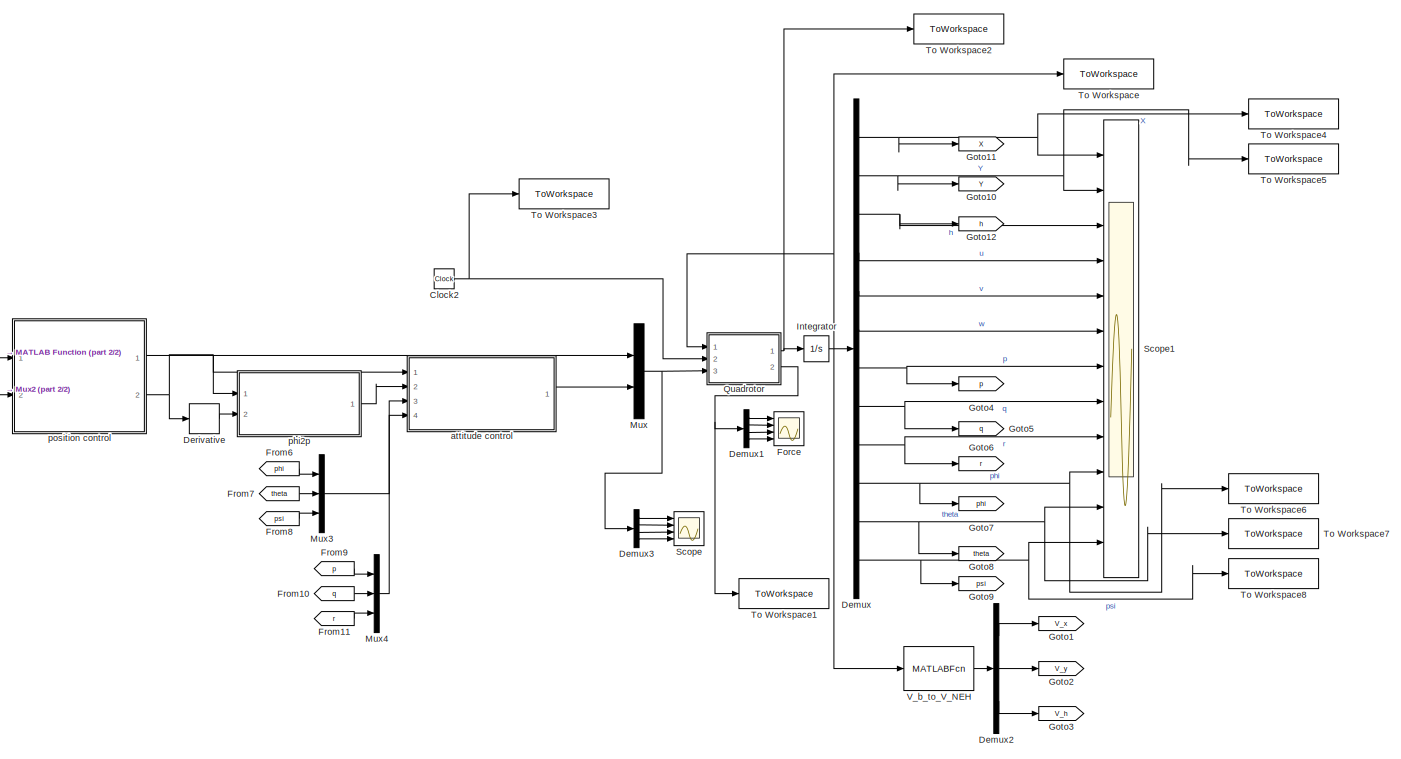
[diagram: root canvas - part 1/2, most of the canvas]
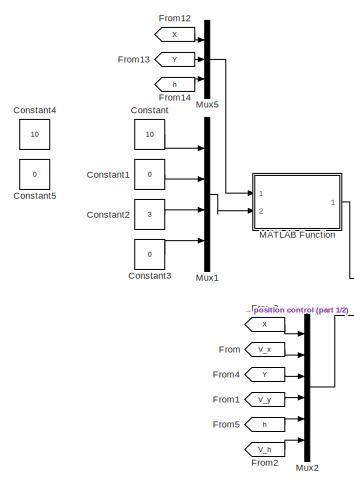
[diagram: root canvas - part 2/2, middle left region]
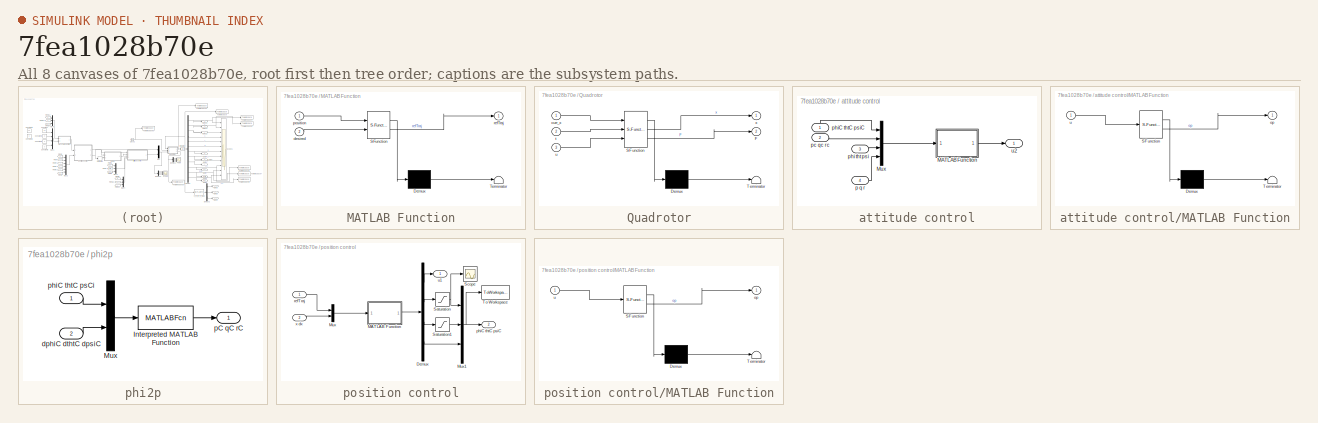
[diagram: thumbnail index - all 8 canvases of the model, root first then tree order]
MODEL slx_7fea1028b70e
KIND model
CONFIG AbsTol = auto
CONFIG EnableMultiTasking = on
CONFIG FixedStep = 0.001
CONFIG MaxStep = auto
CONFIG MinStep = auto
CONFIG RelTol = 1e-3
CONFIG SampleTimeConstraint = Unconstrained
CONFIG SolverName = ode4
CONFIG StartTime = 0.0
CONFIG StopTime = time_fault
BLOCK [Clock] Clock2
BLOCK [Constant] Constant
  Value = 10
BLOCK [Constant] Constant1
  Value = 0
BLOCK [Constant] Constant2
  Value = 3
BLOCK [Constant] Constant3
  Value = 0
BLOCK [Constant] Constant4
  Commented = on
  Value = 10
BLOCK [Constant] Constant5
  Commented = on
  Value = 0
BLOCK [Demux] Demux
  Outputs = 12
  Ports = [1, 12]
BLOCK [Demux] Demux1
  Ports = [1, 4]
BLOCK [Demux] Demux2
  Outputs = 3
  Ports = [1, 3]
BLOCK [Demux] Demux3
  Ports = [1, 4]
BLOCK [Derivative] Derivative
BLOCK [Scope] Force
  Floating = off
  NameLocation = left
  NumInputPorts = 4
  Ports = [4]
  ScopeSpecificationString = Simulink.scopes.TimeScopeBlockCfg('CurrentConfiguration', extmgr.ConfigurationSet(extmgr.Configuration('Core','General UI',true),extmgr.Configuration('Core','Source UI',true),extmgr.Configuration('Sources','WiredSimulink',true,'DataLoggingVariableName','ScopeData1'),extmgr.Configuration('Visuals','Time Domain',true,'SerializedDisplays',{struct('MinYLimReal','2.56481','MaxYLimReal','8.29542','YLabe...<+3420ch>
BLOCK [From] From
  GotoTag = V_x
  TagVisibility = global
BLOCK [From] From1
  GotoTag = V_y
  TagVisibility = global
BLOCK [From] From10
  GotoTag = q
  TagVisibility = global
BLOCK [From] From11
  GotoTag = r
  TagVisibility = global
BLOCK [From] From12
  GotoTag = X
  TagVisibility = global
BLOCK [From] From13
  GotoTag = Y
  TagVisibility = global
BLOCK [From] From14
  GotoTag = h
  TagVisibility = global
BLOCK [From] From2
  GotoTag = V_h
  TagVisibility = global
BLOCK [From] From3
  GotoTag = X
  TagVisibility = global
BLOCK [From] From4
  GotoTag = Y
  TagVisibility = global
BLOCK [From] From5
  GotoTag = h
  TagVisibility = global
BLOCK [From] From6
  GotoTag = phi
  TagVisibility = global
BLOCK [From] From7
  GotoTag = theta
  TagVisibility = global
BLOCK [From] From8
  GotoTag = psi
  TagVisibility = global
BLOCK [From] From9
  GotoTag = p
  TagVisibility = global
BLOCK [Goto] Goto1
  GotoTag = V_x
  NameLocation = top
  TagVisibility = global
BLOCK [Goto] Goto10
  GotoTag = Y
  NameLocation = top
  TagVisibility = global
BLOCK [Goto] Goto11
  GotoTag = X
  NameLocation = top
  TagVisibility = global
BLOCK [Goto] Goto12
  GotoTag = h
  NameLocation = top
  TagVisibility = global
BLOCK [Goto] Goto2
  GotoTag = V_y
  NameLocation = top
  TagVisibility = global
BLOCK [Goto] Goto3
  GotoTag = V_h
  NameLocation = top
  TagVisibility = global
BLOCK [Goto] Goto4
  GotoTag = p
  NameLocation = top
  TagVisibility = global
BLOCK [Goto] Goto5
  GotoTag = q
  NameLocation = top
  TagVisibility = global
BLOCK [Goto] Goto6
  GotoTag = r
  NameLocation = top
  TagVisibility = global
BLOCK [Goto] Goto7
  GotoTag = phi
  NameLocation = top
  TagVisibility = global
BLOCK [Goto] Goto8
  GotoTag = theta
  NameLocation = top
  TagVisibility = global
BLOCK [Goto] Goto9
  GotoTag = psi
  NameLocation = top
  TagVisibility = global
BLOCK [Integrator] Integrator
  InitialCondition = Q.init
  Ports = [1, 1]
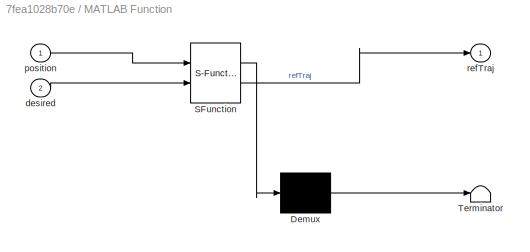
BLOCK [SubSystem] MATLAB Function
  ErrorFcn = Stateflow.Translate.translate
  PermitHierarchicalResolution = ExplicitOnly
  Ports = [2, 1]
  RequestExecContextInheritance = off
  SFBlockType = MATLAB Function
  TreatAsAtomicUnit = on
BLOCK [Demux] MATLAB Function/ Demux 
  Outputs = 1
  Ports = [1, 1]
BLOCK [S-Function] MATLAB Function/ SFunction 
  EnableBusSupport = on
  FunctionName = sf_sfun
  PortCounts = [2 2]
  Ports = [2, 2]
  SFcnIsStateOwnerBlock = off
  SFunctionDeploymentMode = off
  Tag = Stateflow S-Function 3
BLOCK [Terminator] MATLAB Function/ Terminator 
BLOCK [Inport] MATLAB Function/desired
  Port = 2
BLOCK [Inport] MATLAB Function/position
BLOCK [Outport] MATLAB Function/refTraj
BLOCK [Mux] Mux
  DisplayOption = bar
  Inputs = 2
  Ports = [2, 1]
BLOCK [Mux] Mux1
  DisplayOption = bar
  Ports = [4, 1]
BLOCK [Mux] Mux2
  DisplayOption = bar
  Inputs = 6
  Ports = [6, 1]
BLOCK [Mux] Mux3
  DisplayOption = bar
  Inputs = 3
  Ports = [3, 1]
BLOCK [Mux] Mux4
  DisplayOption = bar
  Inputs = 3
  Ports = [3, 1]
BLOCK [Mux] Mux5
  DisplayOption = bar
  Inputs = 3
  Ports = [3, 1]
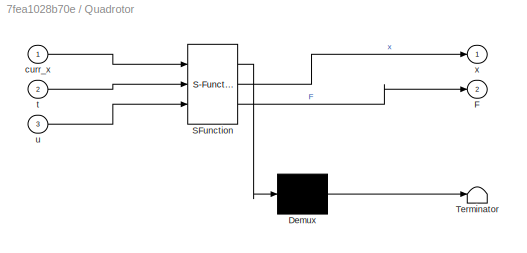
BLOCK [SubSystem] Quadrotor
  ErrorFcn = Stateflow.Translate.translate
  PermitHierarchicalResolution = ExplicitOnly
  Ports = [3, 2]
  RequestExecContextInheritance = off
  SFBlockType = MATLAB Function
  TreatAsAtomicUnit = on
BLOCK [Demux] Quadrotor/ Demux 
  Outputs = 1
  Ports = [1, 1]
BLOCK [S-Function] Quadrotor/ SFunction 
  EnableBusSupport = on
  FunctionName = sf_sfun
  PortCounts = [3 3]
  Ports = [3, 3]
  SFcnIsStateOwnerBlock = off
  SFunctionDeploymentMode = off
  Tag = Stateflow S-Function 8
BLOCK [Terminator] Quadrotor/ Terminator 
BLOCK [Outport] Quadrotor/F
  Port = 2
BLOCK [Inport] Quadrotor/curr_x
BLOCK [Inport] Quadrotor/t
  Port = 2
BLOCK [Inport] Quadrotor/u
  Port = 3
BLOCK [Outport] Quadrotor/x
BLOCK [Scope] Scope
  Floating = off
  NumInputPorts = 4
  Ports = [4]
  ScopeSpecificationString = Simulink.scopes.TimeScopeBlockCfg('CurrentConfiguration', extmgr.ConfigurationSet(extmgr.Configuration('Core','General UI',true),extmgr.Configuration('Core','Source UI',true),extmgr.Configuration('Sources','WiredSimulink',true,'DataLoggingVariableName','ScopeData2'),extmgr.Configuration('Visuals','Time Domain',true,'SerializedDisplays',{struct('MinYLimReal','2.57642','MaxYLimReal','22.57642','YLab...<+3451ch>
BLOCK [Scope] Scope1
  Floating = off
  NumInputPorts = 12
  Ports = [12]
  ScopeSpecificationString = Simulink.scopes.TimeScopeBlockCfg('CurrentConfiguration', extmgr.ConfigurationSet(extmgr.Configuration('Core','General UI',true),extmgr.Configuration('Core','Source UI',true),extmgr.Configuration('Sources','WiredSimulink',true),extmgr.Configuration('Visuals','Time Domain',true,'SerializedDisplays',{struct('MinYLimReal','-0.00000000000000000043','MaxYLimReal','0.00000000000000000005','YLabelReal','...<+9141ch>
BLOCK [ToWorkspace] To Workspace
  FixptAsFi = on
  MaxDataPoints = inf
  Ports = [1]
  SampleTime = -1
  SaveFormat = Structure
  VariableName = PFTC_data
BLOCK [ToWorkspace] To Workspace1
  FixptAsFi = on
  MaxDataPoints = inf
  Ports = [1]
  SampleTime = -1
  SaveFormat = Structure
  VariableName = PFTC_force
BLOCK [ToWorkspace] To Workspace2
  FixptAsFi = on
  MaxDataPoints = inf
  Ports = [1]
  SampleTime = -1
  SaveFormat = Structure
  VariableName = PFTC_data_dot
BLOCK [ToWorkspace] To Workspace3
  FixptAsFi = on
  MaxDataPoints = inf
  Ports = [1]
  SampleTime = -1
  Save2DSignal = 2-D array (concatenate along first dimension)
  VariableName = time_sim
BLOCK [ToWorkspace] To Workspace4
  FixptAsFi = on
  MaxDataPoints = inf
  Ports = [1]
  SampleTime = -1
  VariableName = x
BLOCK [ToWorkspace] To Workspace5
  FixptAsFi = on
  MaxDataPoints = inf
  Ports = [1]
  SampleTime = -1
  VariableName = y
BLOCK [ToWorkspace] To Workspace6
  FixptAsFi = on
  MaxDataPoints = inf
  Ports = [1]
  SampleTime = -1
  VariableName = phi
BLOCK [ToWorkspace] To Workspace7
  FixptAsFi = on
  MaxDataPoints = inf
  Ports = [1]
  SampleTime = -1
  VariableName = theta
BLOCK [ToWorkspace] To Workspace8
  FixptAsFi = on
  MaxDataPoints = inf
  Ports = [1]
  SampleTime = -1
  VariableName = psi
BLOCK [MATLABFcn] V_b_to_V_NEH
  MATLABFcn = transform
  OutputDimensions = 3
  Ports = [1, 1]
BLOCK [SubSystem] attitude control
  Ports = [4, 1]
  RequestExecContextInheritance = off
BLOCK [SubSystem] attitude control/MATLAB Function
  ErrorFcn = Stateflow.Translate.translate
  PermitHierarchicalResolution = ExplicitOnly
  Ports = [1, 1]
  RequestExecContextInheritance = off
  SFBlockType = MATLAB Function
  TreatAsAtomicUnit = on
BLOCK [Demux] attitude control/MATLAB Function/ Demux 
  Outputs = 1
  Ports = [1, 1]
BLOCK [S-Function] attitude control/MATLAB Function/ SFunction 
  EnableBusSupport = on
  FunctionName = sf_sfun
  PortCounts = [1 2]
  Ports = [1, 2]
  SFcnIsStateOwnerBlock = off
  SFunctionDeploymentMode = off
  Tag = Stateflow S-Function 1
BLOCK [Terminator] attitude control/MATLAB Function/ Terminator 
BLOCK [Outport] attitude control/MATLAB Function/op
BLOCK [Inport] attitude control/MATLAB Function/u
BLOCK [Mux] attitude control/Mux
  DisplayOption = bar
  Ports = [4, 1]
BLOCK [Inport] attitude control/p q r
  Port = 4
BLOCK [Inport] attitude control/pc qc rc
  Port = 2
BLOCK [Inport] attitude control/phi tht psi
  Port = 3
BLOCK [Inport] attitude control/phiC thtC psiC
  NameLocation = right
BLOCK [Outport] attitude control/u2
BLOCK [SubSystem] phi2p
  Ports = [2, 1]
  RequestExecContextInheritance = off
BLOCK [MATLABFcn] phi2p/Interpreted MATLAB Function
  MATLABFcn = dThtdPhidPsi2pqr(u)
  OutputDimensions = 3
  Ports = [1, 1]
BLOCK [Mux] phi2p/Mux
  DisplayOption = bar
  Inputs = 2
  Ports = [2, 1]
BLOCK [Inport] phi2p/dphiC dthtC dpsiC
  Port = 2
BLOCK [Outport] phi2p/pC qC rC
BLOCK [Inport] phi2p/phiC thtC psCi
BLOCK [SubSystem] position control
  Ports = [2, 2]
  RequestExecContextInheritance = off
BLOCK [Demux] position control/Demux
  Ports = [1, 4]
BLOCK [SubSystem] position control/MATLAB Function
  ErrorFcn = Stateflow.Translate.translate
  PermitHierarchicalResolution = ExplicitOnly
  Ports = [1, 1]
  RequestExecContextInheritance = off
  SFBlockType = MATLAB Function
  TreatAsAtomicUnit = on
BLOCK [Demux] position control/MATLAB Function/ Demux 
  Outputs = 1
  Ports = [1, 1]
BLOCK [S-Function] position control/MATLAB Function/ SFunction 
  EnableBusSupport = on
  FunctionName = sf_sfun
  PortCounts = [1 2]
  Ports = [1, 2]
  SFcnIsStateOwnerBlock = off
  SFunctionDeploymentMode = off
  Tag = Stateflow S-Function 2
BLOCK [Terminator] position control/MATLAB Function/ Terminator 
BLOCK [Outport] position control/MATLAB Function/op
BLOCK [Inport] position control/MATLAB Function/u
BLOCK [Mux] position control/Mux
  DisplayOption = bar
  Inputs = 2
  Ports = [2, 1]
BLOCK [Mux] position control/Mux1
  DisplayOption = bar
  Inputs = 3
  Ports = [3, 1]
BLOCK [Saturate] position control/Saturation
  LowerLimit = -deg2rad(10)
  UpperLimit = deg2rad(10)
BLOCK [Saturate] position control/Saturation1
  LowerLimit = -deg2rad(10)
  UpperLimit = deg2rad(10)
BLOCK [Scope] position control/Scope
  Floating = off
  NumInputPorts = 1
  Ports = [1]
  ScopeSpecificationString = Simulink.scopes.TimeScopeBlockCfg('CurrentConfiguration', extmgr.ConfigurationSet(extmgr.Configuration('Core','General UI',true),extmgr.Configuration('Core','Source UI',true),extmgr.Configuration('Sources','WiredSimulink',true,'DataLoggingVariableName','ScopeData1'),extmgr.Configuration('Visuals','Time Domain',true,'SerializedDisplays',{struct('MinYLimReal','-0.08288','MaxYLimReal','0.2031','YLabe...<+1395ch>
BLOCK [ToWorkspace] position control/To Workspace
  FixptAsFi = on
  MaxDataPoints = inf
  Ports = [1]
  SampleTime = -1
  VariableName = angc
BLOCK [Outport] position control/phiC thtC psiC
  Port = 2
BLOCK [Inport] position control/refTraj
BLOCK [Outport] position control/u1
BLOCK [Inport] position control/x dx
  Port = 2
NET Clock2:1 -> Quadrotor:2, To Workspace3:1
LINE Constant1:1 -> Mux1:2
LINE Constant2:1 -> Mux1:3
LINE Constant3:1 -> Mux1:4
LINE Constant:1 -> Mux1:1
LINE Demux1:1 -> Force:1
LINE Demux1:2 -> Force:2
LINE Demux1:3 -> Force:3
LINE Demux1:4 -> Force:4
LINE Demux2:1 -> Goto1:1
LINE Demux2:2 -> Goto2:1
LINE Demux2:3 -> Goto3:1
LINE Demux3:1 -> Scope:1
LINE Demux3:2 -> Scope:2
LINE Demux3:3 -> Scope:3
LINE Demux3:4 -> Scope:4
NET Demux:1 -> Goto11:1, Scope1:1, To Workspace4:1
NET Demux:10 -> Goto7:1, Scope1:10, To Workspace6:1
NET Demux:11 -> Goto8:1, Scope1:11, To Workspace7:1
NET Demux:12 -> Goto9:1, Scope1:12, To Workspace8:1
NET Demux:2 -> Goto10:1, Scope1:2, To Workspace5:1
NET Demux:3 -> Goto12:1, Scope1:3
LINE Demux:4 -> Scope1:4
LINE Demux:5 -> Scope1:5
LINE Demux:6 -> Scope1:6
NET Demux:7 -> Goto4:1, Scope1:7
NET Demux:8 -> Goto5:1, Scope1:8
NET Demux:9 -> Goto6:1, Scope1:9
LINE Derivative:1 -> phi2p:2
LINE From10:1 -> Mux4:2
LINE From11:1 -> Mux4:3
LINE From12:1 -> Mux5:1
LINE From13:1 -> Mux5:2
LINE From14:1 -> Mux5:3
LINE From1:1 -> Mux2:4
LINE From2:1 -> Mux2:6
LINE From3:1 -> Mux2:1
LINE From4:1 -> Mux2:3
LINE From5:1 -> Mux2:5
LINE From6:1 -> Mux3:1
LINE From7:1 -> Mux3:2
LINE From8:1 -> Mux3:3
LINE From9:1 -> Mux4:1
LINE From:1 -> Mux2:2
NET Integrator:1 -> Demux:1, Quadrotor:1, To Workspace:1, V_b_to_V_NEH:1
LINE MATLAB Function:1 -> position control:1
LINE Mux1:1 -> MATLAB Function:2
LINE Mux2:1 -> position control:2
LINE Mux3:1 -> attitude control:3
LINE Mux4:1 -> attitude control:4
LINE Mux5:1 -> MATLAB Function:1
NET Mux:1 -> Demux3:1, Quadrotor:3
NET Quadrotor:1 -> Integrator:1, To Workspace2:1
NET Quadrotor:2 -> Demux1:1, To Workspace1:1
LINE V_b_to_V_NEH:1 -> Demux2:1
LINE attitude control/MATLAB Function:1 -> attitude control/u2:1
LINE attitude control/Mux:1 -> attitude control/MATLAB Function:1
LINE attitude control/p q r:1 -> attitude control/Mux:4
LINE attitude control/pc qc rc:1 -> attitude control/Mux:2
LINE attitude control/phi tht psi:1 -> attitude control/Mux:3
LINE attitude control/phiC thtC psiC:1 -> attitude control/Mux:1
LINE attitude control:1 -> Mux:2
LINE phi2p/Interpreted MATLAB Function:1 -> phi2p/pC qC rC:1
LINE phi2p/Mux:1 -> phi2p/Interpreted MATLAB Function:1
LINE phi2p/dphiC dthtC dpsiC:1 -> phi2p/Mux:2
LINE phi2p/phiC thtC psCi:1 -> phi2p/Mux:1
LINE phi2p:1 -> attitude control:2
LINE position control/Demux:1 -> position control/u1:1
LINE position control/Demux:2 -> position control/Saturation:1
LINE position control/Demux:3 -> position control/Saturation1:1
LINE position control/Demux:4 -> position control/Mux1:3
LINE position control/MATLAB Function:1 -> position control/Demux:1
NET position control/Mux1:1 -> position control/To Workspace:1, position control/phiC thtC psiC:1
LINE position control/Mux:1 -> position control/MATLAB Function:1
LINE position control/Saturation1:1 -> position control/Mux1:2
NET position control/Saturation:1 -> position control/Mux1:1, position control/Scope:1
LINE position control/refTraj:1 -> position control/Mux:1
LINE position control/x dx:1 -> position control/Mux:2
LINE position control:1 -> Mux:1
NET position control:2 -> Derivative:1, attitude control:1, phi2p:1
note: NET lines group one-source signal fan-out (src -> all destinations, sorted); 1:1 wires keep LINE
CHART attitude control/MATLAB Function states=1 transitions=1
  STATE_LABEL 'eML_blk_kernel()'
  STATE_LABEL 'SCRIPT:\nfunction op=attitude_control(u)\nm = 1.282;\nIx = 4.856*10^-3; Iz = 8.801*10^-3;\nI = [Ix, 0,  0;\n     0,  Ix, 0;\n     0   0,  Iz];\ng = 9.81;\n\n\nKpphi=400;Kdphi=250;\nKptht=400;Kdtht=250;\nKppsi=20.0;Kdpsi=2.0;\n\nphic=u(1);\npc=u(4);\nthtc=u(2);\nqc=u(5);\npsic=u(3);\nrc=u(6);\n\nphi=u(7);\np=u(10);\ntht=u(8);\nq=u(11);\npsi=u(9);\nr=u(12);\n\nop=I*[Kpphi*(phic-phi)+Kdphi*(pc-p);\n    Kptht*(thtc-tht)+Kdtht*(qc...<+45ch>'
CHART position
control/MATLAB Function states=1 transitions=1
  STATE_LABEL 'eML_blk_kernel()'
  STATE_LABEL 'SCRIPT:\nfunction op=position_control(u)\nm = 1.282; g = 9.81;\n\n\nxdes=u(1);\nydes=u(2);\nzdes=u(3);\npsides=u(4);\n\nx=u(5);\ndx=u(6);\ny=u(7);\ndy=u(8);\nz=u(9);\ndz=u(10);\n\nddxdes = 0; dxdes = 0;  ddydes = 0; dydes = 0; ddzdes = 0; dzdes = 0;\n\n\nKpz=300;Kdz=0.3;\nKpx=1;Kdx=0.1;\nKpy=1;Kdy=0.1;\n\n\nddxc = ddxdes + Kdx*(dxdes-dx) + Kpx*(xdes-x);\nddyc = ddydes + Kdy*(dydes-dy) + Kpy*(ydes-y);\nddzc = ddzdes + Kdz*(d...<+277ch>'
CHART MATLAB Function states=1 transitions=1
  STATE_LABEL 'eML_blk_kernel()'
  STATE_LABEL 'SCRIPT:\nfunction refTraj = fcn(position, desired)\nN = position(1); E = position(2); h = position(3);\nx_des = desired(1); y_des = desired(2); z_des = desired(3); psi = desired(4);\n\nrefTraj = zeros(1,4);\nrefTraj(1) = x_des;\nrefTraj(2) = y_des;\nrefTraj(3) = z_des;\nrefTraj(4) = psi;\n\n'
CHART Quadrotor states=1 transitions=1
  STATE_LABEL 'eML_blk_kernel()'
  STATE_LABEL 'SCRIPT:\nfunction [x,F] = system(curr_x,t, u)\n% x = {xyz xyzvel pqr phi theta psi}\nx = zeros(12,1);\n% Properties\nm = 1.282; g = 9.81;\nIx = 4.856*10^-3; Iz = 8.801*10^-3;\nb = 0.0066;\nkr = 0.02; %drag coefficient\nkt = 0.9;\nl = 0.1;\n\n% k = 1.733*10^-5;\n% ohm1 = u(1); ohm2 = u(2); ohm3 = u(3); ohm4 = u(4);\n% F = k*[ohm1^2; ohm2^2; ohm3^2; ohm4^2];\nT = u(1); tp = u(2); tq = u(3); tr = u(4);\n% tr = b*(T-...<+1725ch>'
CHART  states=0 transitions=0
CHART  states=0 transitions=0
CHART  states=0 transitions=0
CHART  states=0 transitions=0
